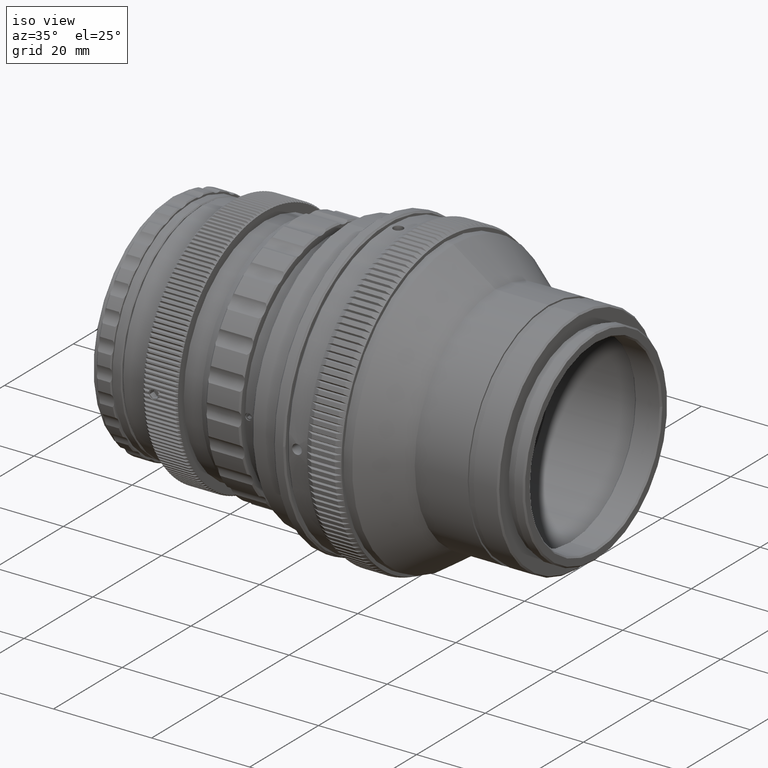
[diagram: clean part render]
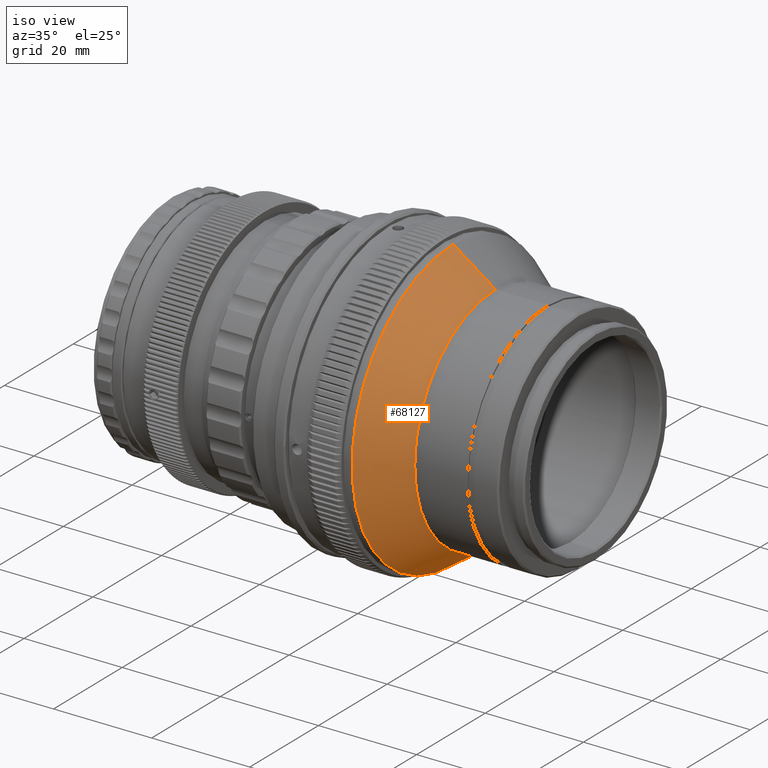
[diagram: same view with one face highlighted and labeled with its STEP entity id]
A machine part, iso view. The second image highlights one B-rep face of the part: STEP entity #68127.
In plain terms, the highlighted conical surface has half-angle 35 deg.
Its self-contained STEP definition (entity closure, byte-faithful):
#25 = EDGE_CURVE ( 'NONE', #83375, #57641, #90912, .T. ) ;
#80 = FACE_OUTER_BOUND ( 'NONE', #12241, .T. ) ;
#4770 = DIRECTION ( 'NONE',  ( -1.000000000000000000, 0.0000000000000000000, 0.0000000000000000000 ) ) ;
#5063 = DIRECTION ( 'NONE',  ( 0.0000000000000000000, 0.0000000000000000000, 1.000000000000000000 ) ) ;
#6815 = DIRECTION ( 'NONE',  ( -1.000000000000000000, -0.0000000000000000000, -0.0000000000000000000 ) ) ;
#7843 = CARTESIAN_POINT ( 'NONE',  ( 13.23111195954733100, 3.612708057484692400E-015, -29.50000000000000700 ) ) ;
#8509 = LINE ( 'NONE', #62206, #82464 ) ;
#12241 = EDGE_LOOP ( 'NONE', ( #27925, #68116, #47430, #58113 ) ) ;
#15873 = DIRECTION ( 'NONE',  ( -1.000000000000000000, -0.0000000000000000000, -0.0000000000000000000 ) ) ;
#18978 = VERTEX_POINT ( 'NONE', #50894 ) ;
#27925 = ORIENTED_EDGE ( 'NONE', *, *, #25, .F. ) ;
#32811 = DIRECTION ( 'NONE',  ( -0.8191520442889909100, 0.0000000000000000000, 0.5735764363510472700 ) ) ;
#34212 = CIRCLE ( 'NONE', #89832, 23.50000000000000000 ) ;
#36979 = CIRCLE ( 'NONE', #57222, 29.50000000000000400 ) ;
#37526 = CARTESIAN_POINT ( 'NONE',  ( 13.23111195954734500, 3.612708057484690800E-015, -29.49999999999999600 ) ) ;
#38732 = CARTESIAN_POINT ( 'NONE',  ( 13.23111195954734500, 0.0000000000000000000, 0.0000000000000000000 ) ) ;
#43979 = DIRECTION ( 'NONE',  ( -0.8191520442889909100, 7.024285468436556000E-017, -0.5735764363510472700 ) ) ;
#47036 = CARTESIAN_POINT ( 'NONE',  ( 21.80000000000000100, 0.0000000000000000000, 23.50000000000000000 ) ) ;
#47430 = ORIENTED_EDGE ( 'NONE', *, *, #63649, .T. ) ;
#47487 = CARTESIAN_POINT ( 'NONE',  ( 21.80000000000000100, 2.877919977996280300E-015, -23.50000000000000000 ) ) ;
#48931 = EDGE_CURVE ( 'NONE', #57641, #18978, #36979, .T. ) ;
#50894 = CARTESIAN_POINT ( 'NONE',  ( 13.23111195954734500, 0.0000000000000000000, 29.49999999999999600 ) ) ;
#52549 = VERTEX_POINT ( 'NONE', #47036 ) ;
#52857 = VECTOR ( 'NONE', #43979, 1000.000000000000000 ) ;
#55038 = CONICAL_SURFACE ( 'NONE', #90398, 29.50000000000000700, 0.6108652381980167500 ) ;
#56981 = DIRECTION ( 'NONE',  ( 0.0000000000000000000, 0.0000000000000000000, 1.000000000000000000 ) ) ;
#57222 = AXIS2_PLACEMENT_3D ( 'NONE', #38732, #15873, #73457 ) ;
#57641 = VERTEX_POINT ( 'NONE', #37526 ) ;
#58113 = ORIENTED_EDGE ( 'NONE', *, *, #48931, .F. ) ;
#62206 = CARTESIAN_POINT ( 'NONE',  ( 13.23111195954733100, 0.0000000000000000000, 29.50000000000000700 ) ) ;
#63649 = EDGE_CURVE ( 'NONE', #52549, #18978, #8509, .T. ) ;
#63856 = CARTESIAN_POINT ( 'NONE',  ( 21.80000000000000100, 0.0000000000000000000, 0.0000000000000000000 ) ) ;
#68116 = ORIENTED_EDGE ( 'NONE', *, *, #70224, .T. ) ;
#68127 = ADVANCED_FACE ( 'NONE', ( #80 ), #55038, .T. ) ;
#70224 = EDGE_CURVE ( 'NONE', #83375, #52549, #34212, .T. ) ;
#73457 = DIRECTION ( 'NONE',  ( 0.0000000000000000000, 0.0000000000000000000, 1.000000000000000000 ) ) ;
#76815 = CARTESIAN_POINT ( 'NONE',  ( 13.23111195954733100, 0.0000000000000000000, 0.0000000000000000000 ) ) ;
#82464 = VECTOR ( 'NONE', #32811, 1000.000000000000000 ) ;
#83375 = VERTEX_POINT ( 'NONE', #47487 ) ;
#89832 = AXIS2_PLACEMENT_3D ( 'NONE', #63856, #6815, #56981 ) ;
#90398 = AXIS2_PLACEMENT_3D ( 'NONE', #76815, #4770, #5063 ) ;
#90912 = LINE ( 'NONE', #7843, #52857 ) ;